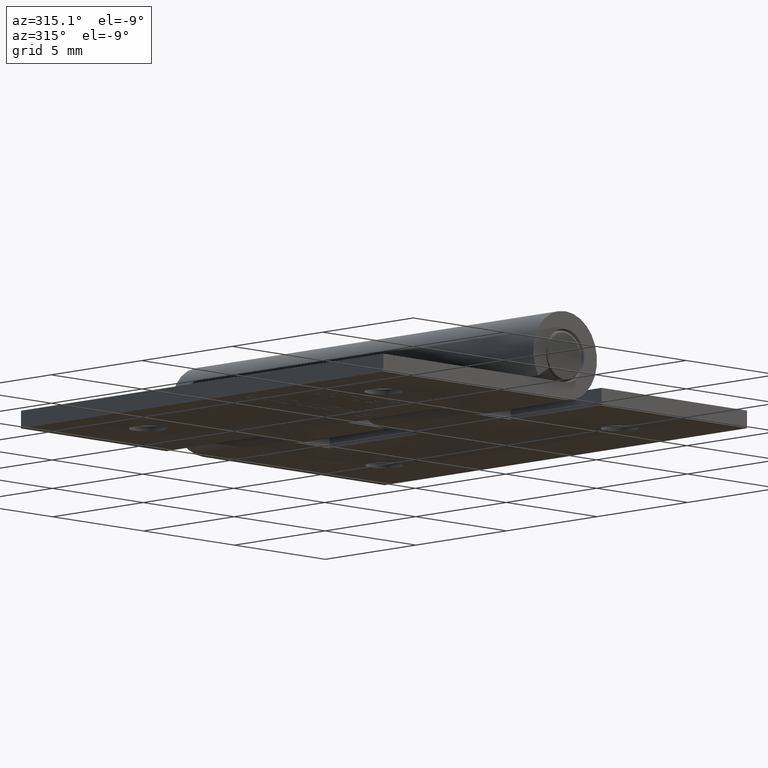
[diagram: clean part render]
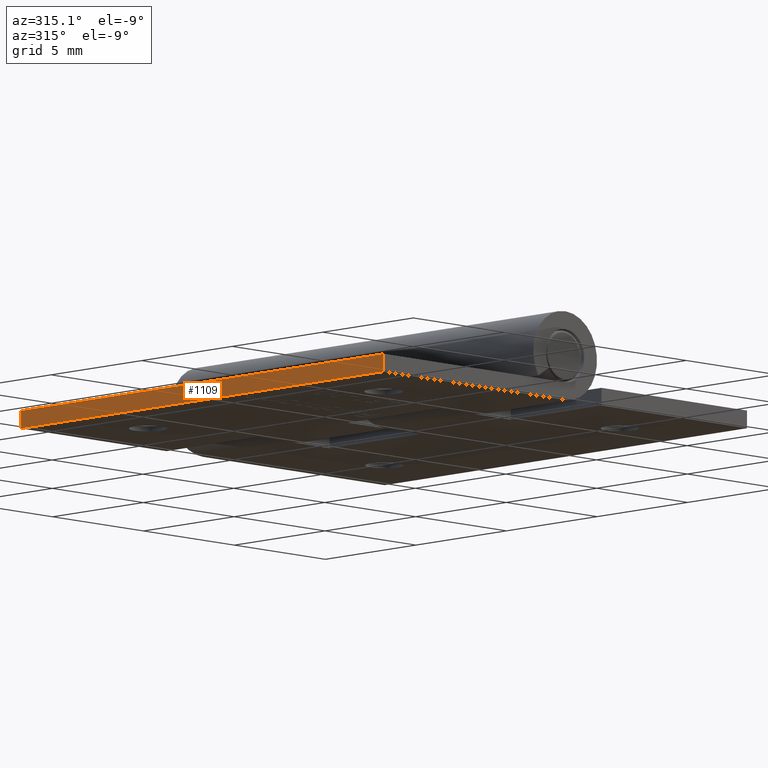
[diagram: same view with one face highlighted and labeled with its STEP entity id]
A machine part, auxiliary view. The second image highlights one B-rep face of the part: STEP entity #1109.
In plain terms, the highlighted planar face has unit normal (1, 0, 0).
Its self-contained STEP definition (entity closure, byte-faithful):
#129 = LINE ( 'NONE', #1448, #264 ) ;
#264 = VECTOR ( 'NONE', #8964, 1000.000000000000000 ) ;
#596 = CARTESIAN_POINT ( 'NONE',  ( -11.75000000000000000, -10.00000000000000000, 0.7000000000000010658 ) ) ;
#1013 = EDGE_LOOP ( 'NONE', ( #7928, #6887, #2485, #10347 ) ) ;
#1089 = CARTESIAN_POINT ( 'NONE',  ( -11.75000000000000000, 10.00000000000000000, 0.7000000000000010658 ) ) ;
#1109 = ADVANCED_FACE ( 'NONE', ( #7617 ), #3617, .F. ) ;
#1448 = CARTESIAN_POINT ( 'NONE',  ( -11.75000000000000000, 10.00000000000000000, 0.7000000000000010658 ) ) ;
#1785 = VERTEX_POINT ( 'NONE', #3637 ) ;
#1824 = EDGE_CURVE ( 'NONE', #2898, #5403, #129, .T. ) ;
#2175 = DIRECTION ( 'NONE',  ( -0.000000000000000000, -1.000000000000000000, -0.000000000000000000 ) ) ;
#2234 = EDGE_CURVE ( 'NONE', #1785, #5403, #3728, .T. ) ;
#2485 = ORIENTED_EDGE ( 'NONE', *, *, #9565, .F. ) ;
#2688 = LINE ( 'NONE', #7759, #8495 ) ;
#2898 = VERTEX_POINT ( 'NONE', #8447 ) ;
#3617 = PLANE ( 'NONE',  #4506 ) ;
#3637 = CARTESIAN_POINT ( 'NONE',  ( -11.75000000000000000, -10.00000000000000000, 1.084202172485504434E-15 ) ) ;
#3728 = LINE ( 'NONE', #596, #9310 ) ;
#3954 = VECTOR ( 'NONE', #2175, 1000.000000000000000 ) ;
#4402 = DIRECTION ( 'NONE',  ( 1.000000000000000000, -0.000000000000000000, 0.000000000000000000 ) ) ;
#4506 = AXIS2_PLACEMENT_3D ( 'NONE', #1089, #4402, #9341 ) ;
#4649 = DIRECTION ( 'NONE',  ( -0.000000000000000000, -0.000000000000000000, 1.000000000000000000 ) ) ;
#5403 = VERTEX_POINT ( 'NONE', #8069 ) ;
#5512 = LINE ( 'NONE', #7252, #3954 ) ;
#5555 = EDGE_CURVE ( 'NONE', #7129, #1785, #5512, .T. ) ;
#6129 = DIRECTION ( 'NONE',  ( -0.000000000000000000, -0.000000000000000000, 1.000000000000000000 ) ) ;
#6887 = ORIENTED_EDGE ( 'NONE', *, *, #1824, .F. ) ;
#7129 = VERTEX_POINT ( 'NONE', #7839 ) ;
#7252 = CARTESIAN_POINT ( 'NONE',  ( -11.75000000000000000, 10.00000000000000000, 1.084202172485504434E-15 ) ) ;
#7617 = FACE_OUTER_BOUND ( 'NONE', #1013, .T. ) ;
#7759 = CARTESIAN_POINT ( 'NONE',  ( -11.75000000000000000, 10.00000000000000000, 0.7000000000000010658 ) ) ;
#7839 = CARTESIAN_POINT ( 'NONE',  ( -11.75000000000000000, 10.00000000000000000, 1.084202172485504434E-15 ) ) ;
#7928 = ORIENTED_EDGE ( 'NONE', *, *, #2234, .T. ) ;
#8069 = CARTESIAN_POINT ( 'NONE',  ( -11.75000000000000000, -10.00000000000000000, 0.7000000000000010658 ) ) ;
#8447 = CARTESIAN_POINT ( 'NONE',  ( -11.75000000000000000, 10.00000000000000000, 0.7000000000000010658 ) ) ;
#8495 = VECTOR ( 'NONE', #6129, 1000.000000000000000 ) ;
#8964 = DIRECTION ( 'NONE',  ( -0.000000000000000000, -1.000000000000000000, -0.000000000000000000 ) ) ;
#9310 = VECTOR ( 'NONE', #4649, 1000.000000000000000 ) ;
#9341 = DIRECTION ( 'NONE',  ( 0.000000000000000000, 0.000000000000000000, -1.000000000000000000 ) ) ;
#9565 = EDGE_CURVE ( 'NONE', #7129, #2898, #2688, .T. ) ;
#10347 = ORIENTED_EDGE ( 'NONE', *, *, #5555, .T. ) ;